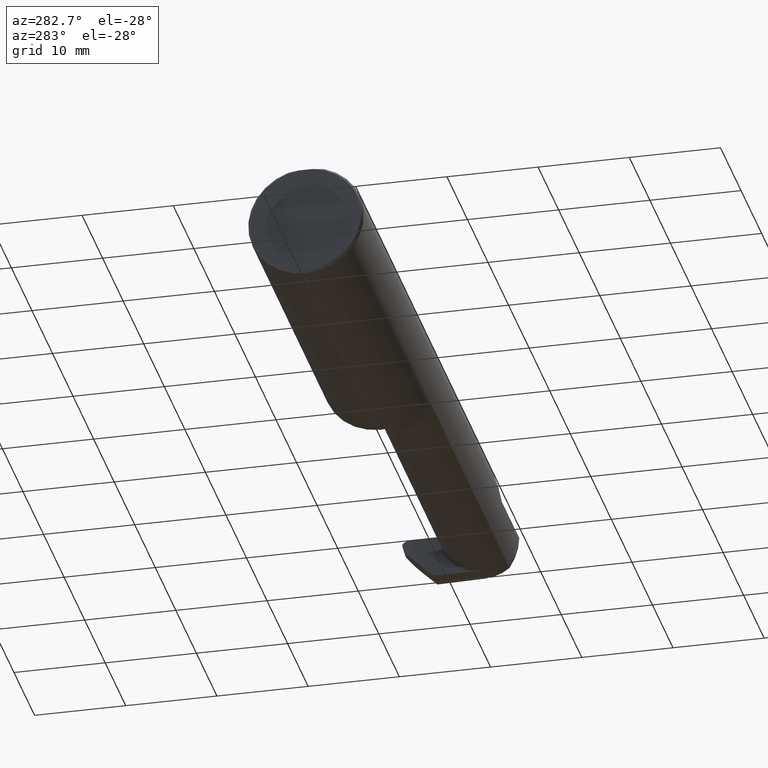
[diagram: clean part render]
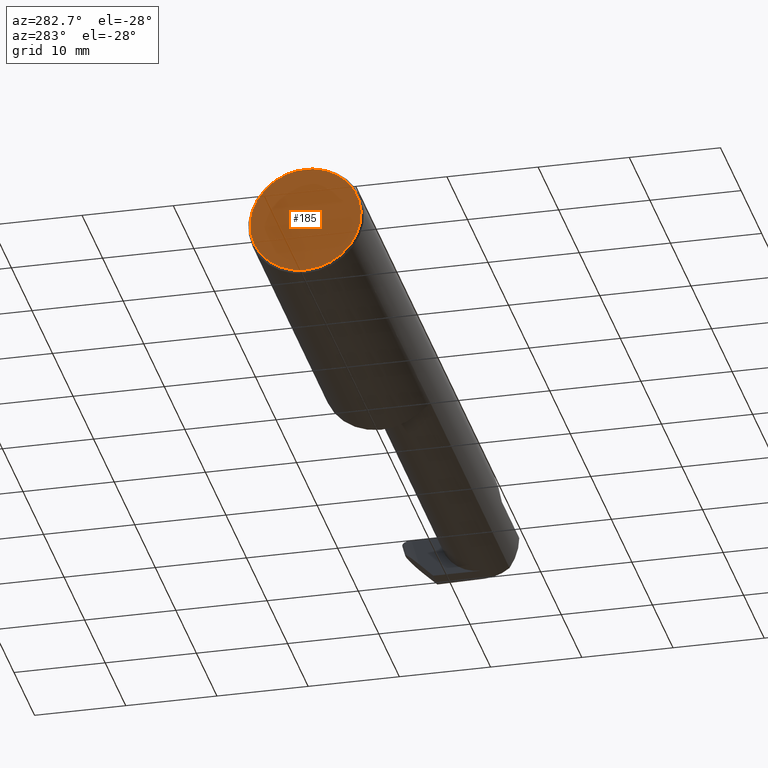
[diagram: same view with one face highlighted and labeled with its STEP entity id]
A machine part, auxiliary view. The second image highlights one B-rep face of the part: STEP entity #185.
In plain terms, the highlighted planar face has unit normal (1, 0, 0).
Its self-contained STEP definition (entity closure, byte-faithful):
#9 = CARTESIAN_POINT ( 'NONE',  ( 0.000000000000000000, 0.03090954545120574992, 0.2378499999999998671 ) ) ;
#36 = EDGE_CURVE ( 'NONE', #570, #544, #117, .T. ) ;
#52 = CARTESIAN_POINT ( 'NONE',  ( 0.000000000000000000, 0.000000000000000000, 0.000000000000000000 ) ) ;
#71 = ORIENTED_EDGE ( 'NONE', *, *, #317, .T. ) ;
#90 = DIRECTION ( 'NONE',  ( 0.000000000000000000, 0.000000000000000000, -1.000000000000000000 ) ) ;
#117 = CIRCLE ( 'NONE', #478, 0.2398500000000001742 ) ;
#123 = DIRECTION ( 'NONE',  ( -1.000000000000000000, -0.000000000000000000, -0.000000000000000000 ) ) ;
#130 = DIRECTION ( 'NONE',  ( 0.000000000000000000, 0.000000000000000000, -1.000000000000000000 ) ) ;
#171 = AXIS2_PLACEMENT_3D ( 'NONE', #52, #276, #432 ) ;
#185 = ADVANCED_FACE ( 'NONE', ( #266 ), #663, .F. ) ;
#194 = DIRECTION ( 'NONE',  ( -1.000000000000000000, -0.000000000000000000, -0.000000000000000000 ) ) ;
#266 = FACE_OUTER_BOUND ( 'NONE', #319, .T. ) ;
#276 = DIRECTION ( 'NONE',  ( 1.000000000000000000, 0.000000000000000000, 0.000000000000000000 ) ) ;
#287 = CARTESIAN_POINT ( 'NONE',  ( 0.000000000000000000, 0.000000000000000000, -0.2398500000000001742 ) ) ;
#317 = EDGE_CURVE ( 'NONE', #337, #570, #550, .T. ) ;
#319 = EDGE_LOOP ( 'NONE', ( #71, #519, #487 ) ) ;
#337 = VERTEX_POINT ( 'NONE', #650 ) ;
#394 = CARTESIAN_POINT ( 'NONE',  ( 0.000000000000000000, 0.2498499999999998500, 0.2378499999999998671 ) ) ;
#432 = DIRECTION ( 'NONE',  ( 0.000000000000000000, 0.000000000000000000, -1.000000000000000000 ) ) ;
#460 = VECTOR ( 'NONE', #611, 39.37007874015748143 ) ;
#461 = EDGE_CURVE ( 'NONE', #544, #337, #696, .T. ) ;
#472 = CARTESIAN_POINT ( 'NONE',  ( 0.000000000000000000, 0.000000000000000000, 0.000000000000000000 ) ) ;
#478 = AXIS2_PLACEMENT_3D ( 'NONE', #472, #194, #90 ) ;
#487 = ORIENTED_EDGE ( 'NONE', *, *, #461, .T. ) ;
#519 = ORIENTED_EDGE ( 'NONE', *, *, #36, .T. ) ;
#544 = VERTEX_POINT ( 'NONE', #287 ) ;
#550 = LINE ( 'NONE', #394, #460 ) ;
#570 = VERTEX_POINT ( 'NONE', #9 ) ;
#593 = AXIS2_PLACEMENT_3D ( 'NONE', #630, #123, #130 ) ;
#611 = DIRECTION ( 'NONE',  ( -0.000000000000000000, 1.000000000000000000, -0.000000000000000000 ) ) ;
#630 = CARTESIAN_POINT ( 'NONE',  ( 0.000000000000000000, 0.000000000000000000, 0.000000000000000000 ) ) ;
#650 = CARTESIAN_POINT ( 'NONE',  ( 0.000000000000000000, -0.03090954545120560767, 0.2378499999999998671 ) ) ;
#663 = PLANE ( 'NONE',  #171 ) ;
#696 = CIRCLE ( 'NONE', #593, 0.2398500000000001742 ) ;